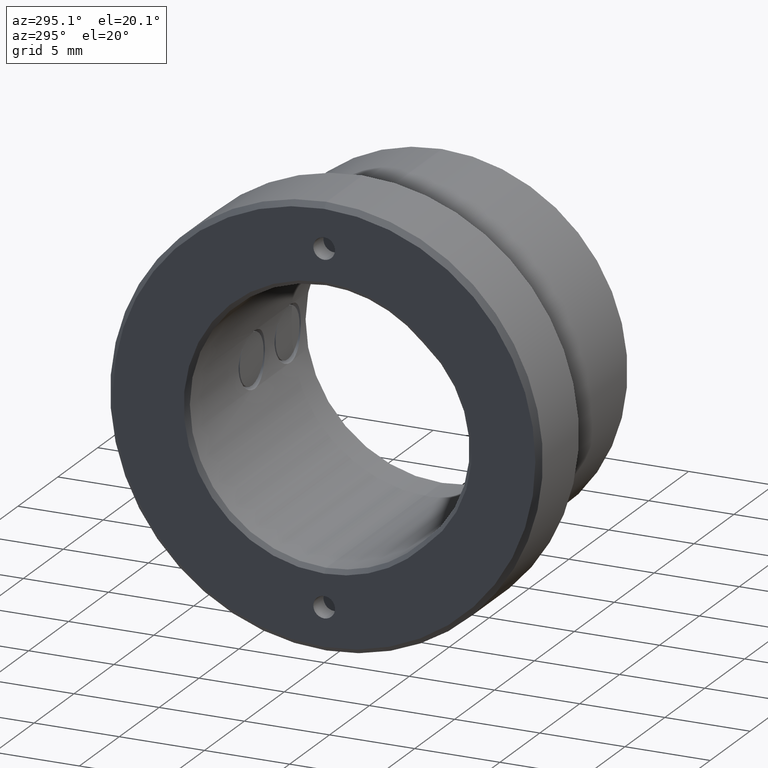
[diagram: clean part render]
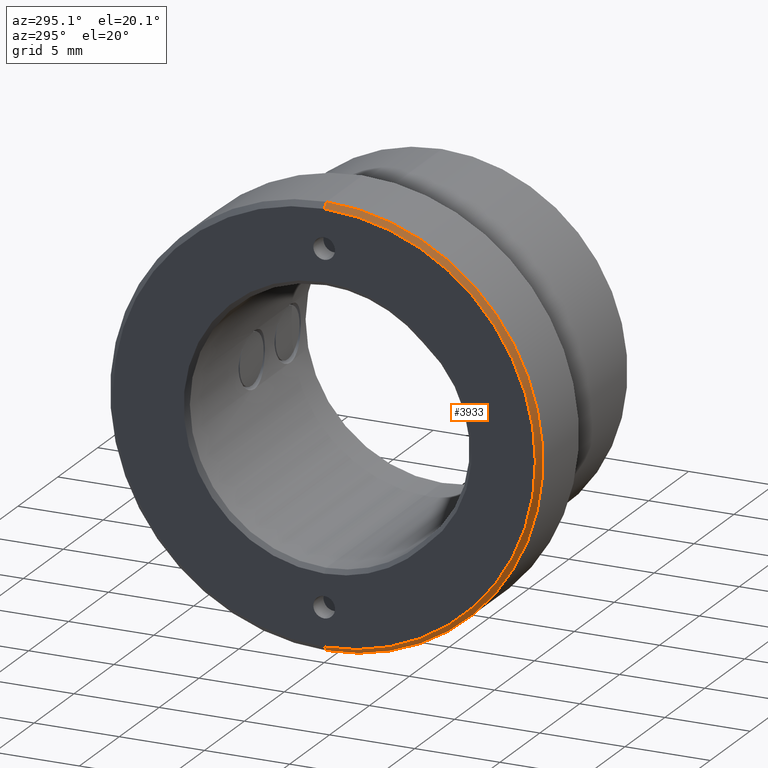
[diagram: same view with one face highlighted and labeled with its STEP entity id]
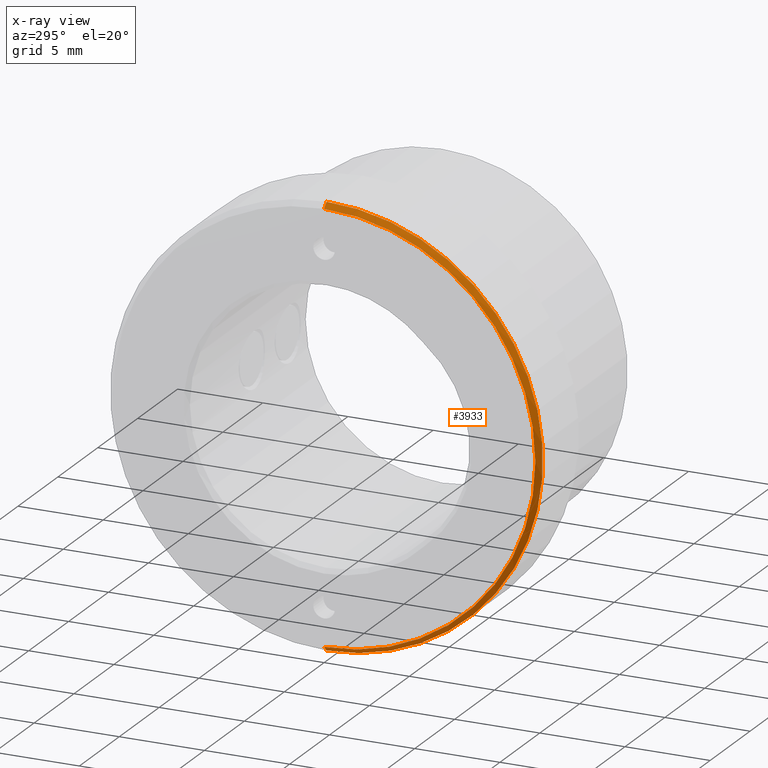
[diagram: x-ray of the same camera — body ghosted, the highlighted face saturated]
A machine part, auxiliary view. The second image highlights one B-rep face of the part: STEP entity #3933.
The next image is the same camera in x-ray: the body ghosted, the highlighted face saturated — about 0% of this face is hidden behind the body in this view.
In plain terms, the highlighted conical surface has half-angle 45 deg.
Its self-contained STEP definition (entity closure, byte-faithful):
#46 = EDGE_CURVE ( 'NONE', #3150, #1110, #4179, .T. ) ;
#128 = VECTOR ( 'NONE', #2812, 1000.000000000000114 ) ;
#496 = ORIENTED_EDGE ( 'NONE', *, *, #728, .F. ) ;
#619 = ORIENTED_EDGE ( 'NONE', *, *, #3114, .F. ) ;
#728 = EDGE_CURVE ( 'NONE', #989, #3117, #4483, .T. ) ;
#780 = CARTESIAN_POINT ( 'NONE',  ( 0.000000000000000000, 0.000000000000000000, -12.40000000000000213 ) ) ;
#864 = EDGE_CURVE ( 'NONE', #3150, #3117, #1612, .T. ) ;
#945 = DIRECTION ( 'NONE',  ( 1.000000000000000000, -0.000000000000000000, -0.000000000000000000 ) ) ;
#989 = VERTEX_POINT ( 'NONE', #3394 ) ;
#1048 = CARTESIAN_POINT ( 'NONE',  ( 0.2999999999999964362, 1.555301434917138433E-15, -12.69999999999999929 ) ) ;
#1110 = VERTEX_POINT ( 'NONE', #1904 ) ;
#1161 = CARTESIAN_POINT ( 'NONE',  ( 0.2999999999999964362, 0.000000000000000000, 0.000000000000000000 ) ) ;
#1401 = CARTESIAN_POINT ( 'NONE',  ( 0.2999999999999964362, 1.555301434917138433E-15, 12.69999999999999929 ) ) ;
#1612 = LINE ( 'NONE', #4206, #128 ) ;
#1768 = DIRECTION ( 'NONE',  ( 0.7071067811865455743, 8.659560562354957510E-17, 0.7071067811865495711 ) ) ;
#1904 = CARTESIAN_POINT ( 'NONE',  ( 0.000000000000000000, 1.536931732929928397E-15, 12.40000000000000213 ) ) ;
#2209 = LINE ( 'NONE', #1401, #4796 ) ;
#2271 = EDGE_LOOP ( 'NONE', ( #619, #4550, #3093, #496 ) ) ;
#2695 = DIRECTION ( 'NONE',  ( -1.000000000000000000, -0.000000000000000000, -0.000000000000000000 ) ) ;
#2770 = CARTESIAN_POINT ( 'NONE',  ( 0.000000000000000000, 0.000000000000000000, 0.000000000000000000 ) ) ;
#2812 = DIRECTION ( 'NONE',  ( 0.7071067811865455743, 0.000000000000000000, -0.7071067811865495711 ) ) ;
#3061 = CARTESIAN_POINT ( 'NONE',  ( 0.2999999999999964362, 0.000000000000000000, 0.000000000000000000 ) ) ;
#3093 = ORIENTED_EDGE ( 'NONE', *, *, #864, .T. ) ;
#3114 = EDGE_CURVE ( 'NONE', #1110, #989, #2209, .T. ) ;
#3117 = VERTEX_POINT ( 'NONE', #1048 ) ;
#3150 = VERTEX_POINT ( 'NONE', #780 ) ;
#3247 = AXIS2_PLACEMENT_3D ( 'NONE', #2770, #2695, #4237 ) ;
#3320 = AXIS2_PLACEMENT_3D ( 'NONE', #1161, #945, #4677 ) ;
#3394 = CARTESIAN_POINT ( 'NONE',  ( 0.2999999999999964362, 0.000000000000000000, 12.69999999999999929 ) ) ;
#3641 = CONICAL_SURFACE ( 'NONE', #3710, 12.69999999999999929, 0.7853981633974511656 ) ;
#3710 = AXIS2_PLACEMENT_3D ( 'NONE', #3061, #4543, #3862 ) ;
#3862 = DIRECTION ( 'NONE',  ( 0.000000000000000000, 0.000000000000000000, -1.000000000000000000 ) ) ;
#3933 = ADVANCED_FACE ( 'NONE', ( #4185 ), #3641, .T. ) ;
#4179 = CIRCLE ( 'NONE', #3247, 12.40000000000000213 ) ;
#4185 = FACE_OUTER_BOUND ( 'NONE', #2271, .T. ) ;
#4206 = CARTESIAN_POINT ( 'NONE',  ( 0.2999999999999964362, 0.000000000000000000, -12.69999999999999929 ) ) ;
#4237 = DIRECTION ( 'NONE',  ( 0.000000000000000000, 0.000000000000000000, -1.000000000000000000 ) ) ;
#4483 = CIRCLE ( 'NONE', #3320, 12.69999999999999929 ) ;
#4543 = DIRECTION ( 'NONE',  ( 1.000000000000000000, -0.000000000000000000, -0.000000000000000000 ) ) ;
#4550 = ORIENTED_EDGE ( 'NONE', *, *, #46, .F. ) ;
#4677 = DIRECTION ( 'NONE',  ( 0.000000000000000000, 0.000000000000000000, -1.000000000000000000 ) ) ;
#4796 = VECTOR ( 'NONE', #1768, 1000.000000000000114 ) ;